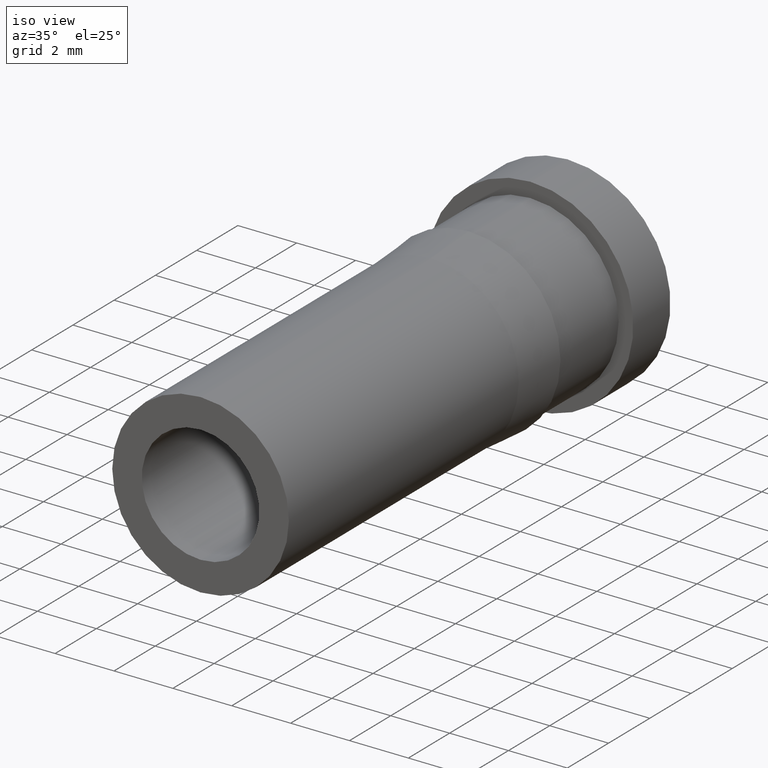
[diagram: clean part render]
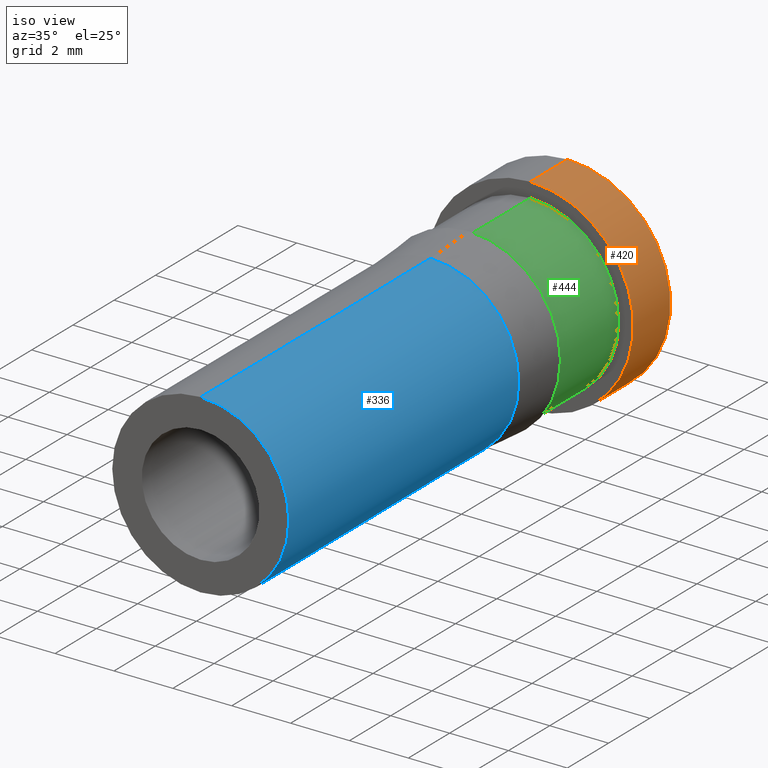
[diagram: same view with three faces highlighted in distinct colors, each labeled with its STEP entity id]
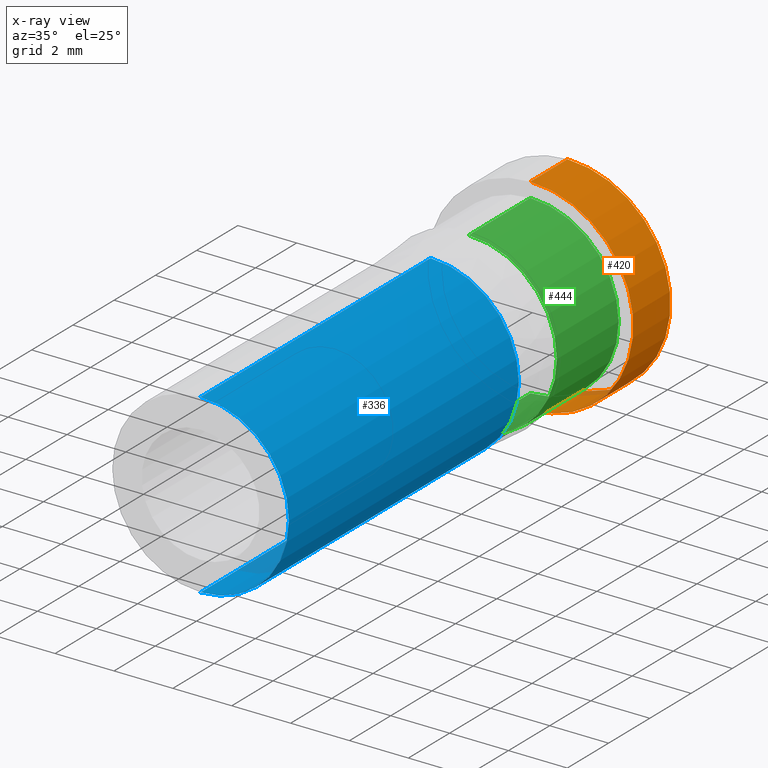
[diagram: x-ray of the same camera — body ghosted, the three highlighted faces saturated]
A machine part, iso view with three faces highlighted in distinct colors.
The next image is the same camera in x-ray (body ghosted, the three faces saturated) — at least one of them is partly hidden behind the body in this view.
Their STEP definitions:

[orange] entity #420 — the highlighted cylindrical surface (partial cylindrical patch) has radius 3.5 mm, axis along (-0, -1, -0).
#14 = VERTEX_POINT ( 'NONE', #291 ) ;
#16 = ORIENTED_EDGE ( 'NONE', *, *, #150, .F. ) ;
#17 = VECTOR ( 'NONE', #181, 1000.000000000000000 ) ;
#24 = VERTEX_POINT ( 'NONE', #428 ) ;
#30 = CIRCLE ( 'NONE', #229, 3.499999999999999112 ) ;
#36 = LINE ( 'NONE', #391, #17 ) ;
#72 = CARTESIAN_POINT ( 'NONE',  ( 0.0000000000000000000, -17.80000000000000071, -3.499999999999999556 ) ) ;
#73 = DIRECTION ( 'NONE',  ( 0.0000000000000000000, 0.0000000000000000000, -1.000000000000000000 ) ) ;
#87 = DIRECTION ( 'NONE',  ( 0.0000000000000000000, 0.0000000000000000000, -1.000000000000000000 ) ) ;
#89 = ORIENTED_EDGE ( 'NONE', *, *, #295, .T. ) ;
#97 = EDGE_LOOP ( 'NONE', ( #89, #300, #16, #213 ) ) ;
#114 = FACE_OUTER_BOUND ( 'NONE', #97, .T. ) ;
#150 = EDGE_CURVE ( 'NONE', #400, #24, #30, .T. ) ;
#181 = DIRECTION ( 'NONE',  ( -0.0000000000000000000, -1.000000000000000000, -0.0000000000000000000 ) ) ;
#201 = DIRECTION ( 'NONE',  ( 0.0000000000000000000, 0.0000000000000000000, -1.000000000000000000 ) ) ;
#207 = DIRECTION ( 'NONE',  ( -0.0000000000000000000, -1.000000000000000000, -0.0000000000000000000 ) ) ;
#213 = ORIENTED_EDGE ( 'NONE', *, *, #383, .F. ) ;
#228 = VERTEX_POINT ( 'NONE', #377 ) ;
#229 = AXIS2_PLACEMENT_3D ( 'NONE', #230, #270, #201 ) ;
#230 = CARTESIAN_POINT ( 'NONE',  ( 0.0000000000000000000, -1.799999999999999600, 0.0000000000000000000 ) ) ;
#243 = LINE ( 'NONE', #72, #410 ) ;
#247 = CARTESIAN_POINT ( 'NONE',  ( 0.0000000000000000000, 0.0000000000000000000, 0.0000000000000000000 ) ) ;
#270 = DIRECTION ( 'NONE',  ( -0.0000000000000000000, -1.000000000000000000, -0.0000000000000000000 ) ) ;
#280 = DIRECTION ( 'NONE',  ( -0.0000000000000000000, -1.000000000000000000, -0.0000000000000000000 ) ) ;
#291 = CARTESIAN_POINT ( 'NONE',  ( 4.286263797015736102E-16, 0.0000000000000000000, 3.499999999999999556 ) ) ;
#292 = CARTESIAN_POINT ( 'NONE',  ( 0.0000000000000000000, -1.799999999999999600, -3.499999999999999112 ) ) ;
#295 = EDGE_CURVE ( 'NONE', #228, #14, #413, .T. ) ;
#300 = ORIENTED_EDGE ( 'NONE', *, *, #365, .T. ) ;
#312 = AXIS2_PLACEMENT_3D ( 'NONE', #332, #358, #87 ) ;
#332 = CARTESIAN_POINT ( 'NONE',  ( 0.0000000000000000000, -17.80000000000000071, 0.0000000000000000000 ) ) ;
#358 = DIRECTION ( 'NONE',  ( -0.0000000000000000000, -1.000000000000000000, -0.0000000000000000000 ) ) ;
#362 = CYLINDRICAL_SURFACE ( 'NONE', #312, 3.499999999999999556 ) ;
#365 = EDGE_CURVE ( 'NONE', #14, #24, #36, .T. ) ;
#377 = CARTESIAN_POINT ( 'NONE',  ( 0.0000000000000000000, 0.0000000000000000000, -3.499999999999999556 ) ) ;
#383 = EDGE_CURVE ( 'NONE', #228, #400, #243, .T. ) ;
#391 = CARTESIAN_POINT ( 'NONE',  ( 4.286263797015736102E-16, -17.80000000000000071, 3.499999999999999556 ) ) ;
#400 = VERTEX_POINT ( 'NONE', #292 ) ;
#410 = VECTOR ( 'NONE', #207, 1000.000000000000000 ) ;
#413 = CIRCLE ( 'NONE', #434, 3.499999999999999556 ) ;
#420 = ADVANCED_FACE ( 'NONE', ( #114 ), #362, .T. ) ;
#428 = CARTESIAN_POINT ( 'NONE',  ( 4.286263797015735609E-16, -1.799999999999999600, 3.499999999999999112 ) ) ;
#434 = AXIS2_PLACEMENT_3D ( 'NONE', #247, #280, #73 ) ;

[blue] entity #336 — the highlighted cylindrical surface (partial cylindrical patch) has radius 3 mm, axis along (-0, -1, -0).
#1 = DIRECTION ( 'NONE',  ( -0.0000000000000000000, -1.000000000000000000, -0.0000000000000000000 ) ) ;
#4 = DIRECTION ( 'NONE',  ( 0.0000000000000000000, 0.0000000000000000000, -1.000000000000000000 ) ) ;
#8 = ORIENTED_EDGE ( 'NONE', *, *, #346, .F. ) ;
#25 = CARTESIAN_POINT ( 'NONE',  ( 0.0000000000000000000, -6.641797671233707234, 0.0000000000000000000 ) ) ;
#31 = VERTEX_POINT ( 'NONE', #119 ) ;
#50 = VERTEX_POINT ( 'NONE', #326 ) ;
#95 = EDGE_LOOP ( 'NONE', ( #430, #189, #132, #8 ) ) ;
#110 = CYLINDRICAL_SURFACE ( 'NONE', #296, 2.999999999999999112 ) ;
#119 = CARTESIAN_POINT ( 'NONE',  ( 3.750480822388768843E-16, -6.641797671233707234, -2.999999999999999556 ) ) ;
#121 = AXIS2_PLACEMENT_3D ( 'NONE', #25, #170, #311 ) ;
#132 = ORIENTED_EDGE ( 'NONE', *, *, #367, .F. ) ;
#145 = DIRECTION ( 'NONE',  ( -0.0000000000000000000, -1.000000000000000000, -0.0000000000000000000 ) ) ;
#162 = VERTEX_POINT ( 'NONE', #347 ) ;
#165 = AXIS2_PLACEMENT_3D ( 'NONE', #390, #283, #277 ) ;
#169 = EDGE_CURVE ( 'NONE', #31, #162, #274, .T. ) ;
#170 = DIRECTION ( 'NONE',  ( -0.0000000000000000000, -1.000000000000000000, -0.0000000000000000000 ) ) ;
#174 = CARTESIAN_POINT ( 'NONE',  ( 0.0000000000000000000, -17.80000000000000071, -2.999999999999998668 ) ) ;
#189 = ORIENTED_EDGE ( 'NONE', *, *, #394, .T. ) ;
#205 = FACE_OUTER_BOUND ( 'NONE', #95, .T. ) ;
#209 = VECTOR ( 'NONE', #1, 1000.000000000000000 ) ;
#241 = CARTESIAN_POINT ( 'NONE',  ( 0.0000000000000000000, -17.80000000000000071, 0.0000000000000000000 ) ) ;
#246 = DIRECTION ( 'NONE',  ( -0.0000000000000000000, -1.000000000000000000, -0.0000000000000000000 ) ) ;
#269 = VERTEX_POINT ( 'NONE', #174 ) ;
#274 = CIRCLE ( 'NONE', #121, 2.999999999999999556 ) ;
#277 = DIRECTION ( 'NONE',  ( 0.0000000000000000000, 0.0000000000000000000, -1.000000000000000000 ) ) ;
#278 = LINE ( 'NONE', #318, #209 ) ;
#283 = DIRECTION ( 'NONE',  ( -0.0000000000000000000, -1.000000000000000000, -0.0000000000000000000 ) ) ;
#296 = AXIS2_PLACEMENT_3D ( 'NONE', #241, #246, #4 ) ;
#311 = DIRECTION ( 'NONE',  ( 0.0000000000000000000, 0.0000000000000000000, -1.000000000000000000 ) ) ;
#318 = CARTESIAN_POINT ( 'NONE',  ( 3.673940397442058882E-16, -17.80000000000000071, 2.999999999999999112 ) ) ;
#326 = CARTESIAN_POINT ( 'NONE',  ( 3.673940397442058389E-16, -17.80000000000000071, 2.999999999999998668 ) ) ;
#336 = ADVANCED_FACE ( 'NONE', ( #205 ), #110, .T. ) ;
#346 = EDGE_CURVE ( 'NONE', #31, #269, #350, .T. ) ;
#347 = CARTESIAN_POINT ( 'NONE',  ( 0.0000000000000000000, -6.641797671233707234, 2.999999999999999556 ) ) ;
#350 = LINE ( 'NONE', #351, #381 ) ;
#351 = CARTESIAN_POINT ( 'NONE',  ( 0.0000000000000000000, -17.80000000000000071, -2.999999999999999112 ) ) ;
#367 = EDGE_CURVE ( 'NONE', #269, #50, #441, .T. ) ;
#381 = VECTOR ( 'NONE', #145, 1000.000000000000000 ) ;
#390 = CARTESIAN_POINT ( 'NONE',  ( 0.0000000000000000000, -17.80000000000000071, 0.0000000000000000000 ) ) ;
#394 = EDGE_CURVE ( 'NONE', #162, #50, #278, .T. ) ;
#430 = ORIENTED_EDGE ( 'NONE', *, *, #169, .T. ) ;
#441 = CIRCLE ( 'NONE', #165, 2.999999999999998668 ) ;

[green] entity #444 — the highlighted cylindrical surface (partial cylindrical patch) has radius 3 mm, axis along (-0, -1, -0).
#12 = ORIENTED_EDGE ( 'NONE', *, *, #173, .T. ) ;
#13 = CARTESIAN_POINT ( 'NONE',  ( 0.0000000000000000000, -17.80000000000000071, 0.0000000000000000000 ) ) ;
#21 = AXIS2_PLACEMENT_3D ( 'NONE', #106, #388, #40 ) ;
#23 = CARTESIAN_POINT ( 'NONE',  ( 3.673940397442059868E-16, -17.80000000000000071, 3.000000000000000000 ) ) ;
#40 = DIRECTION ( 'NONE',  ( 0.0000000000000000000, 0.0000000000000000000, -1.000000000000000000 ) ) ;
#57 = CARTESIAN_POINT ( 'NONE',  ( 0.0000000000000000000, -17.80000000000000071, -3.000000000000000000 ) ) ;
#84 = CIRCLE ( 'NONE', #21, 3.000000000000000000 ) ;
#98 = LINE ( 'NONE', #23, #384 ) ;
#103 = CARTESIAN_POINT ( 'NONE',  ( 0.0000000000000000000, -1.799999999999999600, -3.000000000000000000 ) ) ;
#106 = CARTESIAN_POINT ( 'NONE',  ( 0.0000000000000000000, -1.799999999999999600, 0.0000000000000000000 ) ) ;
#109 = CARTESIAN_POINT ( 'NONE',  ( 0.0000000000000000000, -4.800000000000000711, 0.0000000000000000000 ) ) ;
#127 = ORIENTED_EDGE ( 'NONE', *, *, #316, .F. ) ;
#139 = DIRECTION ( 'NONE',  ( -0.0000000000000000000, -1.000000000000000000, -0.0000000000000000000 ) ) ;
#173 = EDGE_CURVE ( 'NONE', #371, #196, #98, .T. ) ;
#182 = EDGE_CURVE ( 'NONE', #325, #360, #234, .T. ) ;
#187 = FACE_OUTER_BOUND ( 'NONE', #200, .T. ) ;
#194 = VECTOR ( 'NONE', #442, 1000.000000000000000 ) ;
#196 = VERTEX_POINT ( 'NONE', #379 ) ;
#200 = EDGE_LOOP ( 'NONE', ( #284, #12, #127, #322 ) ) ;
#203 = CARTESIAN_POINT ( 'NONE',  ( 3.673940397442059868E-16, -1.799999999999999600, 3.000000000000000000 ) ) ;
#223 = CYLINDRICAL_SURFACE ( 'NONE', #273, 3.000000000000000000 ) ;
#234 = LINE ( 'NONE', #57, #194 ) ;
#242 = EDGE_CURVE ( 'NONE', #325, #371, #84, .T. ) ;
#253 = DIRECTION ( 'NONE',  ( -0.0000000000000000000, -1.000000000000000000, -0.0000000000000000000 ) ) ;
#273 = AXIS2_PLACEMENT_3D ( 'NONE', #13, #253, #290 ) ;
#284 = ORIENTED_EDGE ( 'NONE', *, *, #242, .T. ) ;
#290 = DIRECTION ( 'NONE',  ( 0.0000000000000000000, 0.0000000000000000000, -1.000000000000000000 ) ) ;
#316 = EDGE_CURVE ( 'NONE', #360, #196, #396, .T. ) ;
#321 = DIRECTION ( 'NONE',  ( 0.0000000000000000000, 0.0000000000000000000, -1.000000000000000000 ) ) ;
#322 = ORIENTED_EDGE ( 'NONE', *, *, #182, .F. ) ;
#325 = VERTEX_POINT ( 'NONE', #103 ) ;
#342 = DIRECTION ( 'NONE',  ( -0.0000000000000000000, -1.000000000000000000, -0.0000000000000000000 ) ) ;
#352 = CARTESIAN_POINT ( 'NONE',  ( 0.0000000000000000000, -4.800000000000000711, -2.999999999999999556 ) ) ;
#360 = VERTEX_POINT ( 'NONE', #352 ) ;
#361 = AXIS2_PLACEMENT_3D ( 'NONE', #109, #139, #321 ) ;
#371 = VERTEX_POINT ( 'NONE', #203 ) ;
#379 = CARTESIAN_POINT ( 'NONE',  ( 3.673940397442059375E-16, -4.800000000000000711, 2.999999999999999556 ) ) ;
#384 = VECTOR ( 'NONE', #342, 1000.000000000000000 ) ;
#388 = DIRECTION ( 'NONE',  ( -0.0000000000000000000, -1.000000000000000000, -0.0000000000000000000 ) ) ;
#396 = CIRCLE ( 'NONE', #361, 2.999999999999999556 ) ;
#442 = DIRECTION ( 'NONE',  ( -0.0000000000000000000, -1.000000000000000000, -0.0000000000000000000 ) ) ;
#444 = ADVANCED_FACE ( 'NONE', ( #187 ), #223, .T. ) ;